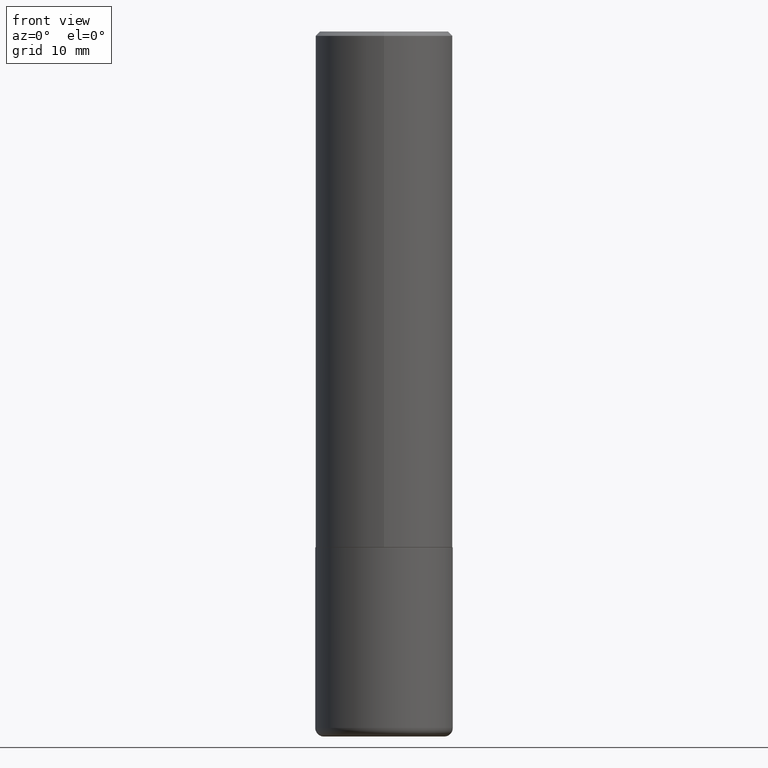
[diagram: clean part render]
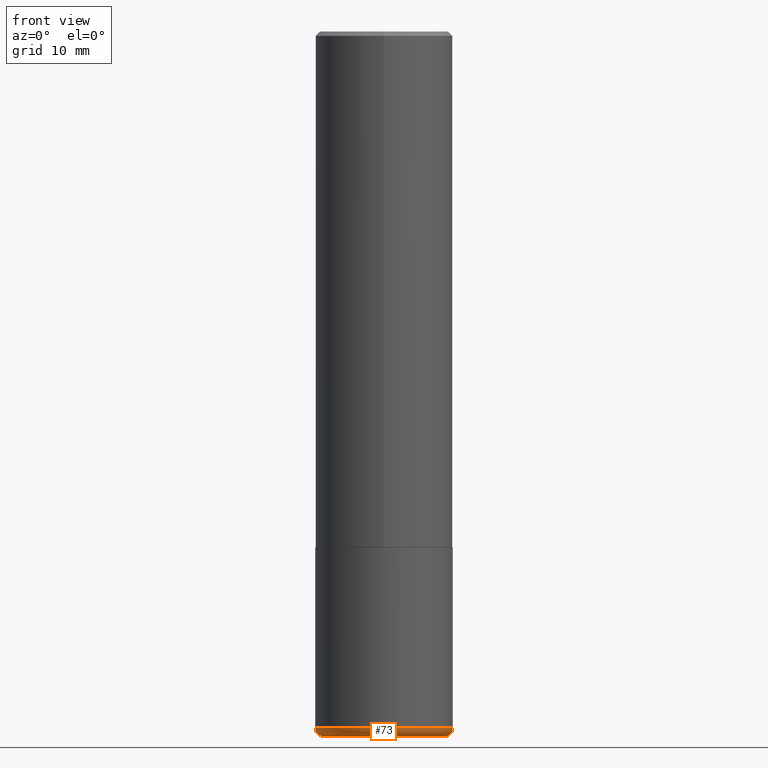
[diagram: same view with one face highlighted and labeled with its STEP entity id]
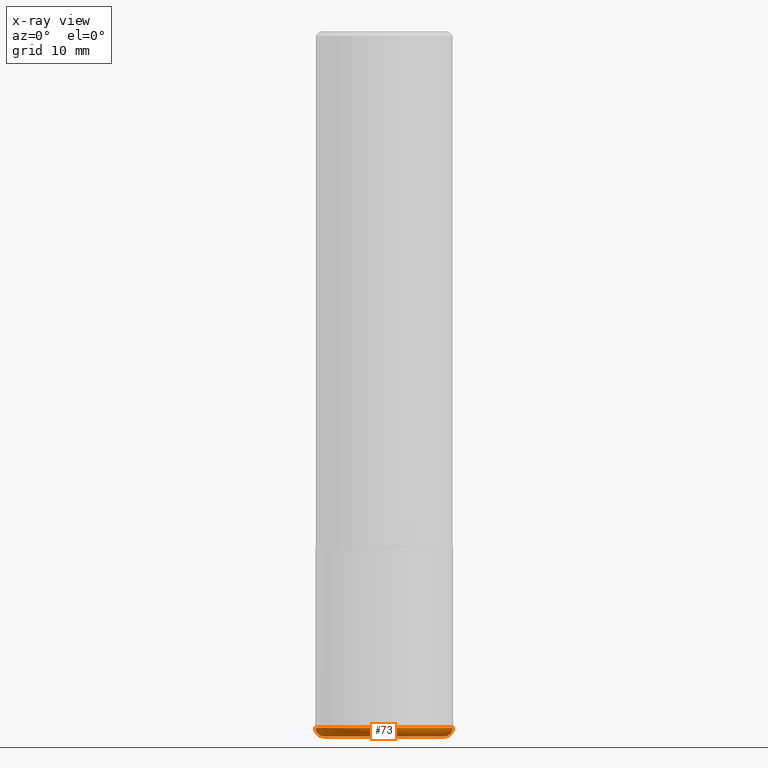
[diagram: x-ray of the same camera — body ghosted, the highlighted face saturated]
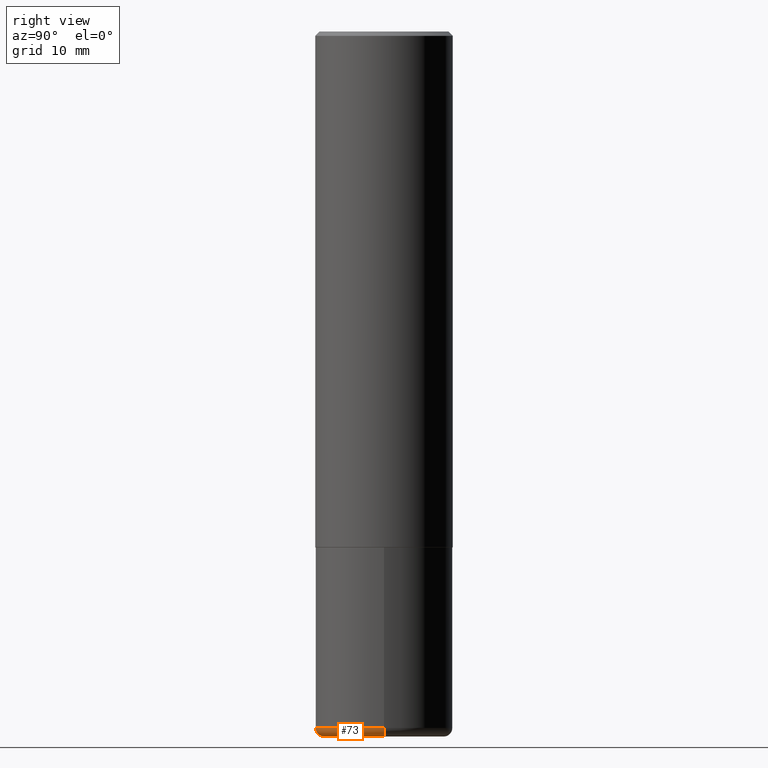
[diagram: same view with one face highlighted and labeled with its STEP entity id]
A machine part, front view. The second image highlights one B-rep face of the part: STEP entity #73.
The next image is the same camera in x-ray: the body ghosted, the highlighted face saturated — about 0% of this face is hidden behind the body in this view.
A second angle (right view) of the same face is appended — the face is thin or edge-on in the first view.
In plain terms, the highlighted toroidal blend (fillet) surface has major radius 6.999 mm and minor (blend) radius 1.0008 mm.
Its self-contained STEP definition (entity closure, byte-faithful):
#2 = VERTEX_POINT ( 'NONE', #276 ) ;
#3 = CARTESIAN_POINT ( 'NONE',  ( 0.3149500000000002853, -1.333326893677419946E-14, -3.188899999999999846 ) ) ;
#23 = DIRECTION ( 'NONE',  ( -6.982962677686266711E-15, -1.000000000000000000, 3.491481338843145583E-15 ) ) ;
#41 = TOROIDAL_SURFACE ( 'NONE', #252, 0.2755500000000000171, 0.03940000000000037222 ) ;
#46 = AXIS2_PLACEMENT_3D ( 'NONE', #94, #23, #216 ) ;
#73 = ADVANCED_FACE ( 'NONE', ( #219 ), #41, .T. ) ;
#81 = EDGE_CURVE ( 'NONE', #85, #418, #382, .T. ) ;
#85 = VERTEX_POINT ( 'NONE', #127 ) ;
#94 = CARTESIAN_POINT ( 'NONE',  ( 0.2755500000000000171, -1.305814020727335945E-14, -3.188899999999999846 ) ) ;
#99 = DIRECTION ( 'NONE',  ( 1.000000000000000000, -6.982962677686266711E-15, 4.883557194083112901E-29 ) ) ;
#105 = CARTESIAN_POINT ( 'NONE',  ( -0.2755500000000000171, -9.176084333049950645E-15, -3.188899999999999846 ) ) ;
#120 = DIRECTION ( 'NONE',  ( -2.445468806185136597E-29, 3.491481338843145583E-15, 1.000000000000000000 ) ) ;
#121 = EDGE_CURVE ( 'NONE', #418, #279, #303, .T. ) ;
#124 = CARTESIAN_POINT ( 'NONE',  ( 7.894706947007478239E-29, -1.127154920618732880E-14, -3.228300000000000836 ) ) ;
#126 = EDGE_CURVE ( 'NONE', #2, #279, #137, .T. ) ;
#127 = CARTESIAN_POINT ( 'NONE',  ( -0.2755500000000000171, -9.104889596480423310E-15, -3.228300000000000836 ) ) ;
#137 = CIRCLE ( 'NONE', #273, 0.3149500000000000632 ) ;
#146 = AXIS2_PLACEMENT_3D ( 'NONE', #124, #256, #248 ) ;
#158 = DIRECTION ( 'NONE',  ( -1.000000000000000000, 7.105427357601001859E-15, 0.000000000000000000 ) ) ;
#188 = DIRECTION ( 'NONE',  ( -2.445468806185136597E-29, 3.491481338843145583E-15, 1.000000000000000000 ) ) ;
#213 = ORIENTED_EDGE ( 'NONE', *, *, #394, .F. ) ;
#216 = DIRECTION ( 'NONE',  ( 1.000000000000000000, -6.982962677686256455E-15, 0.000000000000000000 ) ) ;
#219 = FACE_OUTER_BOUND ( 'NONE', #326, .T. ) ;
#222 = DIRECTION ( 'NONE',  ( 7.105427357601001859E-15, 1.000000000000000000, -3.491481338843145583E-15 ) ) ;
#248 = DIRECTION ( 'NONE',  ( 1.000000000000000000, -6.982962677686268288E-15, 0.000000000000000000 ) ) ;
#252 = AXIS2_PLACEMENT_3D ( 'NONE', #386, #120, #99 ) ;
#256 = DIRECTION ( 'NONE',  ( -2.445468806185136597E-29, 3.491481338843145583E-15, 1.000000000000000000 ) ) ;
#262 = CARTESIAN_POINT ( 'NONE',  ( 0.2755500000000000171, -1.319570457202378025E-14, -3.228300000000000836 ) ) ;
#273 = AXIS2_PLACEMENT_3D ( 'NONE', #344, #188, #351 ) ;
#276 = CARTESIAN_POINT ( 'NONE',  ( -0.3149500000000002853, -8.896130495160468872E-15, -3.188899999999999846 ) ) ;
#279 = VERTEX_POINT ( 'NONE', #3 ) ;
#303 = CIRCLE ( 'NONE', #46, 0.03940000000000040692 ) ;
#323 = CIRCLE ( 'NONE', #404, 0.03940000000000040692 ) ;
#325 = ORIENTED_EDGE ( 'NONE', *, *, #126, .F. ) ;
#326 = EDGE_LOOP ( 'NONE', ( #213, #330, #360, #325 ) ) ;
#330 = ORIENTED_EDGE ( 'NONE', *, *, #81, .T. ) ;
#344 = CARTESIAN_POINT ( 'NONE',  ( 7.798355476043781401E-29, -1.113398484143690801E-14, -3.188899999999999846 ) ) ;
#351 = DIRECTION ( 'NONE',  ( 1.000000000000000000, -6.982962677686268288E-15, 0.000000000000000000 ) ) ;
#360 = ORIENTED_EDGE ( 'NONE', *, *, #121, .T. ) ;
#382 = CIRCLE ( 'NONE', #146, 0.2755500000000000171 ) ;
#386 = CARTESIAN_POINT ( 'NONE',  ( 7.798355476043781401E-29, -1.113398484143690801E-14, -3.188899999999999846 ) ) ;
#394 = EDGE_CURVE ( 'NONE', #85, #2, #323, .T. ) ;
#404 = AXIS2_PLACEMENT_3D ( 'NONE', #105, #222, #158 ) ;
#418 = VERTEX_POINT ( 'NONE', #262 ) ;